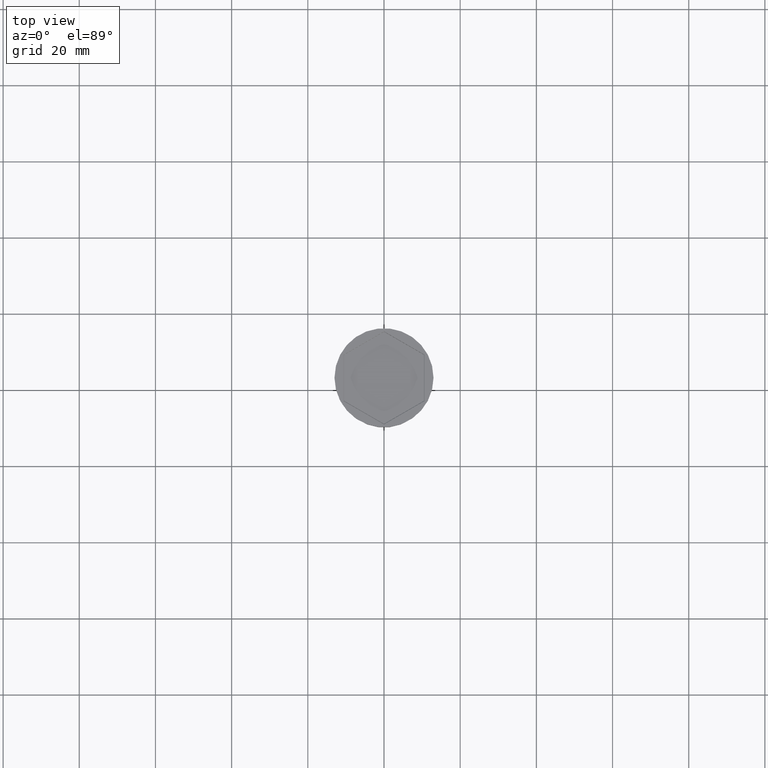
[diagram: clean part render]
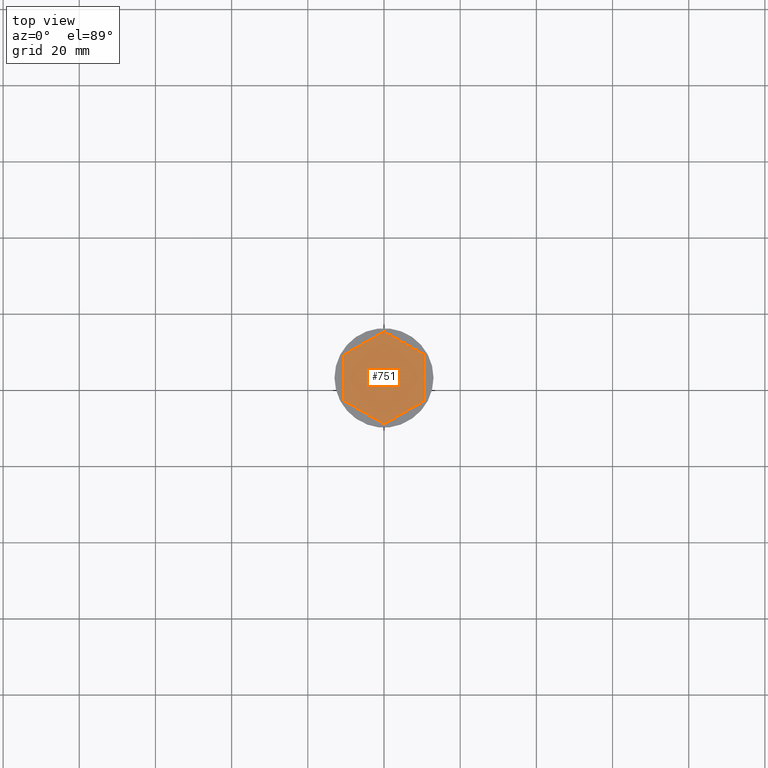
[diagram: same view with one face highlighted and labeled with its STEP entity id]
A machine part, top view. The second image highlights one B-rep face of the part: STEP entity #751.
In plain terms, the highlighted planar face has unit normal (-0, 0, 1).
Its self-contained STEP definition (entity closure, byte-faithful):
#35 = ORIENTED_EDGE ( 'NONE', *, *, #474, .T. ) ;
#78 = CARTESIAN_POINT ( 'NONE',  ( -10.49999999999999822, 0.000000000000000000, -2.000000000000000000 ) ) ;
#111 = LINE ( 'NONE', #605, #1181 ) ;
#118 = VERTEX_POINT ( 'NONE', #184 ) ;
#128 = CARTESIAN_POINT ( 'NONE',  ( -5.249999999999998224, -9.093266739736606041, -2.000000000000000000 ) ) ;
#144 = CARTESIAN_POINT ( 'NONE',  ( 0.000000000000000000, -12.12435565298214080, -2.000000000000000000 ) ) ;
#184 = CARTESIAN_POINT ( 'NONE',  ( 10.49999999999999822, -6.062177826491069510, -2.000000000000000000 ) ) ;
#200 = ORIENTED_EDGE ( 'NONE', *, *, #774, .T. ) ;
#249 = VECTOR ( 'NONE', #1112, 1000.000000000000114 ) ;
#266 = DIRECTION ( 'NONE',  ( -0.000000000000000000, 0.000000000000000000, 1.000000000000000000 ) ) ;
#276 = VECTOR ( 'NONE', #572, 1000.000000000000000 ) ;
#287 = DIRECTION ( 'NONE',  ( -0.8660254037844387076, -0.5000000000000001110, 0.000000000000000000 ) ) ;
#342 = ORIENTED_EDGE ( 'NONE', *, *, #1290, .T. ) ;
#344 = VERTEX_POINT ( 'NONE', #144 ) ;
#382 = VECTOR ( 'NONE', #1267, 1000.000000000000000 ) ;
#402 = LINE ( 'NONE', #670, #382 ) ;
#438 = EDGE_CURVE ( 'NONE', #864, #344, #1235, .T. ) ;
#474 = EDGE_CURVE ( 'NONE', #344, #118, #402, .T. ) ;
#481 = CARTESIAN_POINT ( 'NONE',  ( 5.249999999999996447, 9.093266739736606041, -2.000000000000000000 ) ) ;
#507 = CARTESIAN_POINT ( 'NONE',  ( -10.49999999999999822, -6.062177826491072175, -2.000000000000000000 ) ) ;
#548 = LINE ( 'NONE', #1401, #657 ) ;
#572 = DIRECTION ( 'NONE',  ( 0.000000000000000000, -1.000000000000000000, 0.000000000000000000 ) ) ;
#593 = ORIENTED_EDGE ( 'NONE', *, *, #996, .T. ) ;
#605 = CARTESIAN_POINT ( 'NONE',  ( 10.49999999999999822, 0.000000000000000000, -2.000000000000000000 ) ) ;
#613 = VERTEX_POINT ( 'NONE', #825 ) ;
#638 = EDGE_CURVE ( 'NONE', #613, #864, #1456, .T. ) ;
#657 = VECTOR ( 'NONE', #287, 999.9999999999998863 ) ;
#670 = CARTESIAN_POINT ( 'NONE',  ( 5.250000000000000000, -9.093266739736604265, -2.000000000000000000 ) ) ;
#731 = DIRECTION ( 'NONE',  ( -0.8660254037844387076, 0.4999999999999997224, 0.000000000000000000 ) ) ;
#748 = LINE ( 'NONE', #481, #785 ) ;
#751 = ADVANCED_FACE ( 'NONE', ( #861 ), #1223, .T. ) ;
#774 = EDGE_CURVE ( 'NONE', #956, #1043, #748, .T. ) ;
#785 = VECTOR ( 'NONE', #731, 1000.000000000000114 ) ;
#825 = CARTESIAN_POINT ( 'NONE',  ( -10.49999999999999822, 6.062177826491066845, -2.000000000000000000 ) ) ;
#848 = DIRECTION ( 'NONE',  ( 1.000000000000000000, 0.000000000000000000, 0.000000000000000000 ) ) ;
#861 = FACE_OUTER_BOUND ( 'NONE', #1500, .T. ) ;
#864 = VERTEX_POINT ( 'NONE', #507 ) ;
#882 = ORIENTED_EDGE ( 'NONE', *, *, #438, .T. ) ;
#956 = VERTEX_POINT ( 'NONE', #1384 ) ;
#996 = EDGE_CURVE ( 'NONE', #1043, #613, #548, .T. ) ;
#1043 = VERTEX_POINT ( 'NONE', #1051 ) ;
#1051 = CARTESIAN_POINT ( 'NONE',  ( 0.000000000000000000, 12.12435565298213724, -2.000000000000000000 ) ) ;
#1097 = DIRECTION ( 'NONE',  ( 0.000000000000000000, 1.000000000000000000, -0.000000000000000000 ) ) ;
#1112 = DIRECTION ( 'NONE',  ( 0.8660254037844387076, -0.4999999999999998890, 0.000000000000000000 ) ) ;
#1127 = CARTESIAN_POINT ( 'NONE',  ( 0.000000000000000000, 0.000000000000000000, -2.000000000000000000 ) ) ;
#1181 = VECTOR ( 'NONE', #1097, 1000.000000000000000 ) ;
#1205 = AXIS2_PLACEMENT_3D ( 'NONE', #1127, #266, #848 ) ;
#1223 = PLANE ( 'NONE',  #1205 ) ;
#1235 = LINE ( 'NONE', #128, #249 ) ;
#1267 = DIRECTION ( 'NONE',  ( 0.8660254037844385966, 0.5000000000000001110, 0.000000000000000000 ) ) ;
#1290 = EDGE_CURVE ( 'NONE', #118, #956, #111, .T. ) ;
#1384 = CARTESIAN_POINT ( 'NONE',  ( 10.49999999999999822, 6.062177826491071286, -2.000000000000000000 ) ) ;
#1401 = CARTESIAN_POINT ( 'NONE',  ( -5.249999999999997335, 9.093266739736602489, -2.000000000000000000 ) ) ;
#1456 = LINE ( 'NONE', #78, #276 ) ;
#1500 = EDGE_LOOP ( 'NONE', ( #200, #593, #1566, #882, #35, #342 ) ) ;
#1566 = ORIENTED_EDGE ( 'NONE', *, *, #638, .T. ) ;